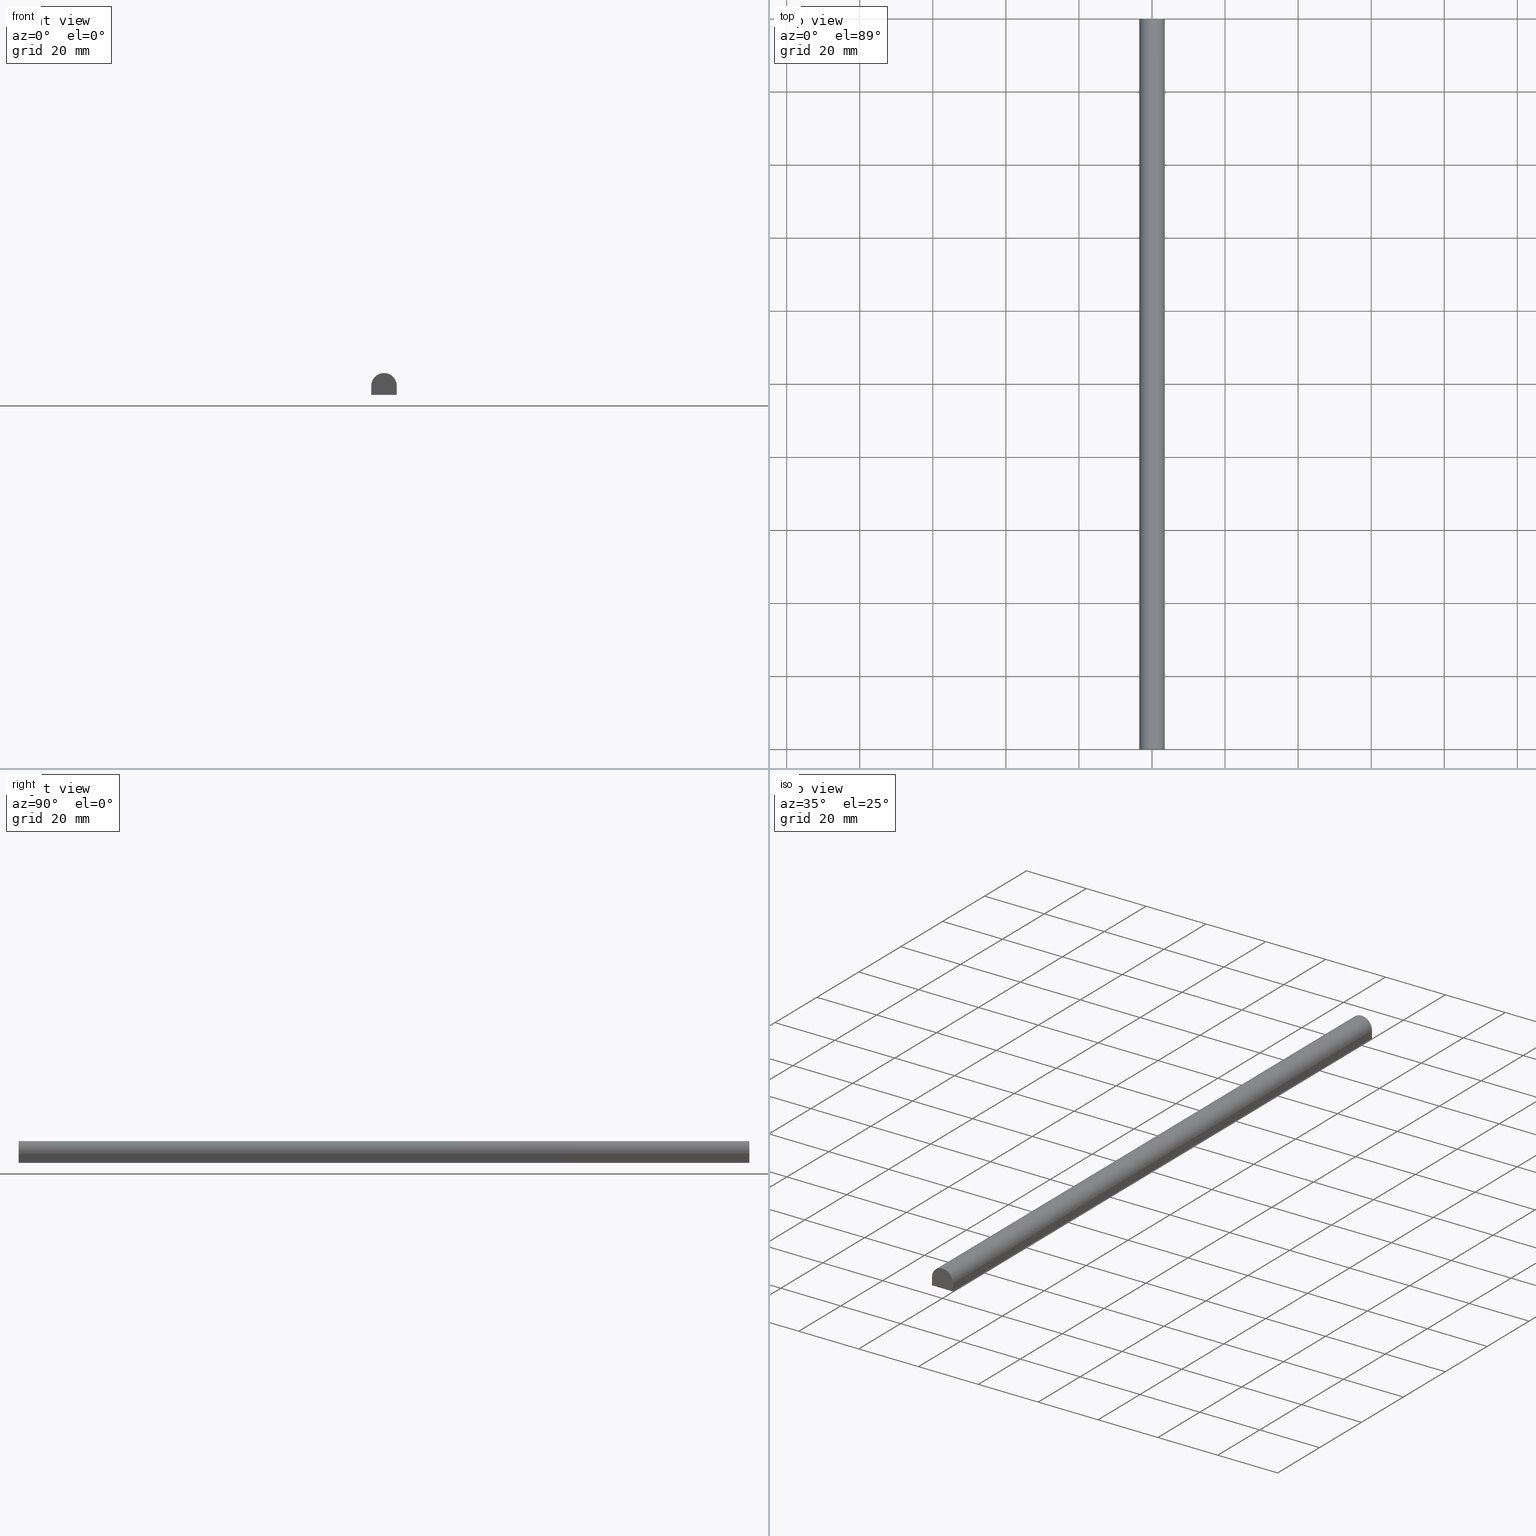
[diagram: canonical four-view strip — front | top / right | iso, engineering-drawing reading convention]
A machine part, canonical four-view strip (front | top / right | iso — engineering-drawing reading convention). The complete STEP part file that produces these views, byte-faithful:
ISO-10303-21;
HEADER;
FILE_DESCRIPTION (( 'STEP AP214' ),
    '1' );
FILE_NAME ('TM_341_1.STEP',
    '2016-05-10T02:18:52',
    ( '' ),
    ( '' ),
    'SwSTEP 2.0',
    'SolidWorks 2015',
    '' );
FILE_SCHEMA (( 'AUTOMOTIVE_DESIGN' ));
ENDSEC;

DATA;
#1 = APPLICATION_PROTOCOL_DEFINITION ( 'draft international standard', 'automotive_design', 1998, #159 ) ;
#2 = CARTESIAN_POINT ( 'NONE',  ( 0.0000000000000000000, 1000.000000000000000, -0.5000000000000000000 ) ) ;
#3 = DIRECTION ( 'NONE',  ( -0.0000000000000000000, -0.0000000000000000000, -1.000000000000000000 ) ) ;
#4 = CARTESIAN_POINT ( 'NONE',  ( 0.0000000000000000000, 0.0000000000000000000, 0.0000000000000000000 ) ) ;
#5 = VERTEX_POINT ( 'NONE', #239 ) ;
#6 = EDGE_CURVE ( 'NONE', #213, #72, #189, .T. ) ;
#7 = CONTEXT_DEPENDENT_SHAPE_REPRESENTATION ( #66, #215 ) ;
#8 = PLANE ( 'NONE',  #204 ) ;
#9 = ADVANCED_FACE ( 'NONE', ( #93 ), #216, .T. ) ;
#10 = LINE ( 'NONE', #111, #36 ) ;
#11 =( GEOMETRIC_REPRESENTATION_CONTEXT ( 3 ) GLOBAL_UNCERTAINTY_ASSIGNED_CONTEXT ( ( #13 ) ) GLOBAL_UNIT_ASSIGNED_CONTEXT ( ( #185, #28, #43 ) ) REPRESENTATION_CONTEXT ( 'NONE', 'WORKASPACE' ) );
#12 = EDGE_LOOP ( 'NONE', ( #228, #134, #156, #167 ) ) ;
#13 = UNCERTAINTY_MEASURE_WITH_UNIT (LENGTH_MEASURE( 1.000000000000000100E-005 ), #185, 'distance_accuracy_value', 'NONE');
#14 = EDGE_CURVE ( 'NONE', #124, #74, #160, .T. ) ;
#15 = DIRECTION ( 'NONE',  ( 1.000000000000000000, -0.0000000000000000000, -0.0000000000000000000 ) ) ;
#16 = FILL_AREA_STYLE_COLOUR ( '', #91 ) ;
#17 = SURFACE_STYLE_USAGE ( .BOTH. , #27 ) ;
#18 = LINE ( 'NONE', #165, #112 ) ;
#19 = DIRECTION ( 'NONE',  ( 0.0000000000000000000, 0.0000000000000000000, 1.000000000000000000 ) ) ;
#20 = FACE_OUTER_BOUND ( 'NONE', #162, .T. ) ;
#21 = VECTOR ( 'NONE', #191, 1000.000000000000000 ) ;
#22 = EDGE_CURVE ( 'NONE', #201, #213, #32, .T. ) ;
#23 = FILL_AREA_STYLE ('',( #16 ) ) ;
#24 =( LENGTH_UNIT ( ) NAMED_UNIT ( * ) SI_UNIT ( .MILLI., .METRE. ) );
#25 = LINE ( 'NONE', #205, #30 ) ;
#26 = CARTESIAN_POINT ( 'NONE',  ( -3.500000000000000000, 0.0000000000000000000, -0.5000000000000000000 ) ) ;
#27 = SURFACE_SIDE_STYLE ('',( #109 ) ) ;
#28 =( NAMED_UNIT ( * ) PLANE_ANGLE_UNIT ( ) SI_UNIT ( $, .RADIAN. ) );
#29 = EDGE_CURVE ( 'NONE', #213, #149, #10, .T. ) ;
#30 = VECTOR ( 'NONE', #152, 1000.000000000000000 ) ;
#31 = AXIS2_PLACEMENT_3D ( 'NONE', #227, #113, #147 ) ;
#32 = CIRCLE ( 'NONE', #71, 3.500000000000000000 ) ;
#33 = DIRECTION ( 'NONE',  ( -0.0000000000000000000, -1.000000000000000000, -0.0000000000000000000 ) ) ;
#34 = DIRECTION ( 'NONE',  ( 0.0000000000000000000, -1.000000000000000000, 0.0000000000000000000 ) ) ;
#35 = CARTESIAN_POINT ( 'NONE',  ( 3.500000000000000000, 0.0000000000000000000, 0.0000000000000000000 ) ) ;
#36 = VECTOR ( 'NONE', #133, 1000.000000000000000 ) ;
#37 = VECTOR ( 'NONE', #54, 1000.000000000000000 ) ;
#38 = CARTESIAN_POINT ( 'NONE',  ( -3.500000000000000000, 200.0000000000000000, -3.000000000000000000 ) ) ;
#39 = LINE ( 'NONE', #221, #82 ) ;
#40 = APPLICATION_CONTEXT ( 'automotive_design' ) ;
#41 = CARTESIAN_POINT ( 'NONE',  ( -3.500000000000000000, 1000.000000000000000, -0.5000000000000000000 ) ) ;
#42 = MECHANICAL_DESIGN_GEOMETRIC_PRESENTATION_REPRESENTATION (  '', ( #238 ), #170 ) ;
#43 =( NAMED_UNIT ( * ) SI_UNIT ( $, .STERADIAN. ) SOLID_ANGLE_UNIT ( ) );
#44 = ORIENTED_EDGE ( 'NONE', *, *, #120, .T. ) ;
#45 = ORIENTED_EDGE ( 'NONE', *, *, #22, .F. ) ;
#46 =( NAMED_UNIT ( * ) PLANE_ANGLE_UNIT ( ) SI_UNIT ( $, .RADIAN. ) );
#47 = CLOSED_SHELL ( 'NONE', ( #9, #85, #224, #103, #90, #118 ) ) ;
#48 =( LENGTH_UNIT ( ) NAMED_UNIT ( * ) SI_UNIT ( .MILLI., .METRE. ) );
#49 = PRODUCT ( 'rubber foam', 'rubber foam', '', ( #187 ) ) ;
#50 = DIRECTION ( 'NONE',  ( 1.000000000000000000, 0.0000000000000000000, 0.0000000000000000000 ) ) ;
#51 = DIRECTION ( 'NONE',  ( 0.0000000000000000000, -1.000000000000000000, 0.0000000000000000000 ) ) ;
#52 = VERTEX_POINT ( 'NONE', #94 ) ;
#53 = CARTESIAN_POINT ( 'NONE',  ( 3.500000000000000000, 1000.000000000000000, -3.000000000000000000 ) ) ;
#54 = DIRECTION ( 'NONE',  ( -0.0000000000000000000, -0.0000000000000000000, 1.000000000000000000 ) ) ;
#55 = EDGE_CURVE ( 'NONE', #5, #201, #89, .T. ) ;
#56 = CARTESIAN_POINT ( 'NONE',  ( 0.0000000000000000000, 200.0000000000000000, 0.0000000000000000000 ) ) ;
#57 = SHAPE_DEFINITION_REPRESENTATION ( #148, #212 ) ;
#58 = DIRECTION ( 'NONE',  ( 0.0000000000000000000, 0.0000000000000000000, -1.000000000000000000 ) ) ;
#59 = DIRECTION ( 'NONE',  ( 0.0000000000000000000, 0.0000000000000000000, 1.000000000000000000 ) ) ;
#60 = PLANE ( 'NONE',  #108 ) ;
#61 = CARTESIAN_POINT ( 'NONE',  ( 0.0000000000000000000, 0.0000000000000000000, -3.000000000000000000 ) ) ;
#62 = ORIENTED_EDGE ( 'NONE', *, *, #120, .F. ) ;
#63 = LINE ( 'NONE', #35, #37 ) ;
#64 = PRESENTATION_STYLE_ASSIGNMENT (( #145 ) ) ;
#65 = SHAPE_REPRESENTATION_RELATIONSHIP ( 'NONE' , 'NONE' ,  #182, #184 ) ;
#66 =( REPRESENTATION_RELATIONSHIP ('NONE','NONE', #212, #182 ) REPRESENTATION_RELATIONSHIP_WITH_TRANSFORMATION ( #139 )SHAPE_REPRESENTATION_RELATIONSHIP( ) );
#67 = ORIENTED_EDGE ( 'NONE', *, *, #99, .T. ) ;
#68 = VECTOR ( 'NONE', #3, 1000.000000000000000 ) ;
#69 = EDGE_LOOP ( 'NONE', ( #176, #62, #101, #115 ) ) ;
#70 = CARTESIAN_POINT ( 'NONE',  ( 3.500000000000000000, 200.0000000000000000, -0.5000000000000000000 ) ) ;
#71 = AXIS2_PLACEMENT_3D ( 'NONE', #83, #177, #19 ) ;
#72 = VERTEX_POINT ( 'NONE', #26 ) ;
#73 = UNCERTAINTY_MEASURE_WITH_UNIT (LENGTH_MEASURE( 1.000000000000000100E-005 ), #48, 'distance_accuracy_value', 'NONE');
#74 = VERTEX_POINT ( 'NONE', #104 ) ;
#75 = LINE ( 'NONE', #53, #218 ) ;
#76 = CYLINDRICAL_SURFACE ( 'NONE', #95, 3.500000000000000000 ) ;
#77 = PRODUCT_DEFINITION_CONTEXT ( 'detailed design', #40, 'design' ) ;
#78 = EDGE_LOOP ( 'NONE', ( #237, #131, #45, #121 ) ) ;
#79 =( NAMED_UNIT ( * ) SI_UNIT ( $, .STERADIAN. ) SOLID_ANGLE_UNIT ( ) );
#80 = PRESENTATION_LAYER_ASSIGNMENT (  '', '', ( #137 ) ) ;
#81 = CARTESIAN_POINT ( 'NONE',  ( 0.0000000000000000000, 0.0000000000000000000, 0.0000000000000000000 ) ) ;
#82 = VECTOR ( 'NONE', #15, 1000.000000000000000 ) ;
#83 = CARTESIAN_POINT ( 'NONE',  ( 0.0000000000000000000, 200.0000000000000000, -0.5000000000000000000 ) ) ;
#84 = DIRECTION ( 'NONE',  ( -0.0000000000000000000, 1.000000000000000000, 0.0000000000000000000 ) ) ;
#85 = ADVANCED_FACE ( 'NONE', ( #20 ), #116, .T. ) ;
#86 = DIRECTION ( 'NONE',  ( 1.000000000000000000, 0.0000000000000000000, 0.0000000000000000000 ) ) ;
#87 = CARTESIAN_POINT ( 'NONE',  ( 3.500000000000000000, 200.0000000000000000, 0.0000000000000000000 ) ) ;
#88 = MANIFOLD_SOLID_BREP ( '���߰�1', #47 ) ;
#89 = LINE ( 'NONE', #87, #219 ) ;
#90 = ADVANCED_FACE ( 'NONE', ( #235 ), #8, .T. ) ;
#91 = COLOUR_RGB ( '',0.7921568627450980000, 0.8196078431372548800, 0.9333333333333333500 ) ;
#92 = SHAPE_DEFINITION_REPRESENTATION ( #135, #182 ) ;
#93 = FACE_OUTER_BOUND ( 'NONE', #12, .T. ) ;
#94 = CARTESIAN_POINT ( 'NONE',  ( 3.500000000000000000, 0.0000000000000000000, -0.5000000000000000000 ) ) ;
#95 = AXIS2_PLACEMENT_3D ( 'NONE', #2, #174, #161 ) ;
#96 = CARTESIAN_POINT ( 'NONE',  ( 0.0000000000000000000, 0.0000000000000000000, 0.0000000000000000000 ) ) ;
#97 = ORIENTED_EDGE ( 'NONE', *, *, #194, .T. ) ;
#98 = DIRECTION ( 'NONE',  ( 1.000000000000000000, 0.0000000000000000000, 0.0000000000000000000 ) ) ;
#99 = EDGE_CURVE ( 'NONE', #74, #52, #63, .T. ) ;
#100 = SURFACE_SIDE_STYLE ('',( #203 ) ) ;
#101 = ORIENTED_EDGE ( 'NONE', *, *, #22, .T. ) ;
#102 = PRESENTATION_STYLE_ASSIGNMENT (( #17 ) ) ;
#103 = ADVANCED_FACE ( 'NONE', ( #192 ), #60, .T. ) ;
#104 = CARTESIAN_POINT ( 'NONE',  ( 3.500000000000000000, 0.0000000000000000000, -3.000000000000000000 ) ) ;
#105 = ORIENTED_EDGE ( 'NONE', *, *, #114, .F. ) ;
#106 = DIRECTION ( 'NONE',  ( -0.0000000000000000000, -0.0000000000000000000, 1.000000000000000000 ) ) ;
#107 = PLANE ( 'NONE',  #119 ) ;
#108 = AXIS2_PLACEMENT_3D ( 'NONE', #41, #166, #175 ) ;
#109 = SURFACE_STYLE_FILL_AREA ( #23 ) ;
#110 = APPLICATION_CONTEXT ( 'automotive_design' ) ;
#111 = CARTESIAN_POINT ( 'NONE',  ( -3.500000000000000000, 200.0000000000000000, 0.0000000000000000000 ) ) ;
#112 = VECTOR ( 'NONE', #34, 1000.000000000000000 ) ;
#113 = DIRECTION ( 'NONE',  ( 0.0000000000000000000, 0.0000000000000000000, 1.000000000000000000 ) ) ;
#114 = EDGE_CURVE ( 'NONE', #72, #124, #129, .T. ) ;
#115 = ORIENTED_EDGE ( 'NONE', *, *, #6, .T. ) ;
#116 = PLANE ( 'NONE',  #206 ) ;
#117 = APPLICATION_PROTOCOL_DEFINITION ( 'draft international standard', 'automotive_design', 1998, #40 ) ;
#118 = ADVANCED_FACE ( 'NONE', ( #138 ), #107, .F. ) ;
#119 = AXIS2_PLACEMENT_3D ( 'NONE', #96, #84, #98 ) ;
#120 = EDGE_CURVE ( 'NONE', #201, #52, #25, .T. ) ;
#121 = ORIENTED_EDGE ( 'NONE', *, *, #55, .F. ) ;
#122 = CIRCLE ( 'NONE', #127, 3.500000000000000000 ) ;
#123 = PRESENTATION_LAYER_ASSIGNMENT (  '', '', ( #238 ) ) ;
#124 = VERTEX_POINT ( 'NONE', #230 ) ;
#125 = DIRECTION ( 'NONE',  ( 1.000000000000000000, 0.0000000000000000000, 0.0000000000000000000 ) ) ;
#126 = VECTOR ( 'NONE', #158, 1000.000000000000000 ) ;
#127 = AXIS2_PLACEMENT_3D ( 'NONE', #168, #33, #59 ) ;
#128 = CARTESIAN_POINT ( 'NONE',  ( -3.500000000000000000, 1000.000000000000000, -3.000000000000000000 ) ) ;
#129 = LINE ( 'NONE', #233, #68 ) ;
#130 =( NAMED_UNIT ( * ) SI_UNIT ( $, .STERADIAN. ) SOLID_ANGLE_UNIT ( ) );
#131 = ORIENTED_EDGE ( 'NONE', *, *, #29, .F. ) ;
#132 = ORIENTED_EDGE ( 'NONE', *, *, #240, .T. ) ;
#133 = DIRECTION ( 'NONE',  ( -0.0000000000000000000, -0.0000000000000000000, -1.000000000000000000 ) ) ;
#134 = ORIENTED_EDGE ( 'NONE', *, *, #194, .F. ) ;
#135 = PRODUCT_DEFINITION_SHAPE ( 'NONE', 'NONE',  #141 ) ;
#136 = FILL_AREA_STYLE_COLOUR ( '', #232 ) ;
#137 = STYLED_ITEM ( 'NONE', ( #102 ), #184 ) ;
#138 = FACE_OUTER_BOUND ( 'NONE', #209, .T. ) ;
#139 = ITEM_DEFINED_TRANSFORMATION ( 'NONE', 'NONE', #178,  #31 ) ;
#140 = EDGE_CURVE ( 'NONE', #5, #74, #75, .T. ) ;
#141 = PRODUCT_DEFINITION ( 'UNKNOWN', '', #210, #77 ) ;
#142 = APPLICATION_PROTOCOL_DEFINITION ( 'draft international standard', 'automotive_design', 1998, #223 ) ;
#143 = ORIENTED_EDGE ( 'NONE', *, *, #14, .T. ) ;
#144 = DIRECTION ( 'NONE',  ( 1.000000000000000000, 0.0000000000000000000, 0.0000000000000000000 ) ) ;
#145 = SURFACE_STYLE_USAGE ( .BOTH. , #100 ) ;
#146 = CARTESIAN_POINT ( 'NONE',  ( 3.500000000000000000, 1000.000000000000000, -3.000000000000000000 ) ) ;
#147 = DIRECTION ( 'NONE',  ( 1.000000000000000000, 0.0000000000000000000, 0.0000000000000000000 ) ) ;
#148 = PRODUCT_DEFINITION_SHAPE ( 'NONE', 'NONE',  #163 ) ;
#149 = VERTEX_POINT ( 'NONE', #38 ) ;
#150 = ORIENTED_EDGE ( 'NONE', *, *, #6, .F. ) ;
#151 = DIRECTION ( 'NONE',  ( -0.0000000000000000000, 1.000000000000000000, 0.0000000000000000000 ) ) ;
#152 = DIRECTION ( 'NONE',  ( 0.0000000000000000000, -1.000000000000000000, 0.0000000000000000000 ) ) ;
#153 = UNCERTAINTY_MEASURE_WITH_UNIT (LENGTH_MEASURE( 1.000000000000000100E-005 ), #24, 'distance_accuracy_value', 'NONE');
#154 = DIRECTION ( 'NONE',  ( 0.0000000000000000000, 0.0000000000000000000, 1.000000000000000000 ) ) ;
#155 = PRODUCT ( 'TM_341_1', 'TM_341_1', '', ( #199 ) ) ;
#156 = ORIENTED_EDGE ( 'NONE', *, *, #234, .T. ) ;
#157 = UNCERTAINTY_MEASURE_WITH_UNIT (LENGTH_MEASURE( 1.000000000000000100E-005 ), #214, 'distance_accuracy_value', 'NONE');
#158 = DIRECTION ( 'NONE',  ( 0.0000000000000000000, -1.000000000000000000, 0.0000000000000000000 ) ) ;
#159 = APPLICATION_CONTEXT ( 'automotive_design' ) ;
#160 = LINE ( 'NONE', #61, #21 ) ;
#161 = DIRECTION ( 'NONE',  ( 0.0000000000000000000, 0.0000000000000000000, -1.000000000000000000 ) ) ;
#162 = EDGE_LOOP ( 'NONE', ( #197, #188, #196, #44 ) ) ;
#163 = PRODUCT_DEFINITION ( 'UNKNOWN', '', #173, #180 ) ;
#164 = ORIENTED_EDGE ( 'NONE', *, *, #29, .T. ) ;
#165 = CARTESIAN_POINT ( 'NONE',  ( -3.500000000000000000, 1000.000000000000000, -3.000000000000000000 ) ) ;
#166 = DIRECTION ( 'NONE',  ( -1.000000000000000000, 0.0000000000000000000, 0.0000000000000000000 ) ) ;
#167 = ORIENTED_EDGE ( 'NONE', *, *, #140, .T. ) ;
#168 = CARTESIAN_POINT ( 'NONE',  ( 0.0000000000000000000, 0.0000000000000000000, -0.5000000000000000000 ) ) ;
#169 = FILL_AREA_STYLE ('',( #136 ) ) ;
#170 =( GEOMETRIC_REPRESENTATION_CONTEXT ( 3 ) GLOBAL_UNCERTAINTY_ASSIGNED_CONTEXT ( ( #73 ) ) GLOBAL_UNIT_ASSIGNED_CONTEXT ( ( #48, #46, #79 ) ) REPRESENTATION_CONTEXT ( 'NONE', 'WORKASPACE' ) );
#171 = DIRECTION ( 'NONE',  ( 0.0000000000000000000, 0.0000000000000000000, -1.000000000000000000 ) ) ;
#172 = CARTESIAN_POINT ( 'NONE',  ( -3.500000000000000000, 1000.000000000000000, -0.5000000000000000000 ) ) ;
#173 = PRODUCT_DEFINITION_FORMATION_WITH_SPECIFIED_SOURCE ( 'ANY', '', #155, .NOT_KNOWN. ) ;
#174 = DIRECTION ( 'NONE',  ( 0.0000000000000000000, -1.000000000000000000, 0.0000000000000000000 ) ) ;
#175 = DIRECTION ( 'NONE',  ( 0.0000000000000000000, 0.0000000000000000000, 1.000000000000000000 ) ) ;
#176 = ORIENTED_EDGE ( 'NONE', *, *, #240, .F. ) ;
#177 = DIRECTION ( 'NONE',  ( -0.0000000000000000000, -1.000000000000000000, -0.0000000000000000000 ) ) ;
#178 = AXIS2_PLACEMENT_3D ( 'NONE', #4, #179, #236 ) ;
#179 = DIRECTION ( 'NONE',  ( 0.0000000000000000000, 0.0000000000000000000, 1.000000000000000000 ) ) ;
#180 = PRODUCT_DEFINITION_CONTEXT ( 'detailed design', #159, 'design' ) ;
#181 = AXIS2_PLACEMENT_3D ( 'NONE', #217, #200, #144 ) ;
#182 = SHAPE_REPRESENTATION ( 'rubber foam', ( #31 ), #11 ) ;
#183 =( NAMED_UNIT ( * ) PLANE_ANGLE_UNIT ( ) SI_UNIT ( $, .RADIAN. ) );
#184 = ADVANCED_BREP_SHAPE_REPRESENTATION ( '', ( #88, #31 ), #11 ) ;
#185 =( LENGTH_UNIT ( ) NAMED_UNIT ( * ) SI_UNIT ( .MILLI., .METRE. ) );
#186 =( GEOMETRIC_REPRESENTATION_CONTEXT ( 3 ) GLOBAL_UNCERTAINTY_ASSIGNED_CONTEXT ( ( #153 ) ) GLOBAL_UNIT_ASSIGNED_CONTEXT ( ( #24, #183, #130 ) ) REPRESENTATION_CONTEXT ( 'NONE', 'WORKASPACE' ) );
#187 = PRODUCT_CONTEXT ( 'NONE', #223, 'mechanical' ) ;
#188 = ORIENTED_EDGE ( 'NONE', *, *, #140, .F. ) ;
#189 = LINE ( 'NONE', #172, #126 ) ;
#190 = PRODUCT_RELATED_PRODUCT_CATEGORY ( 'part', '', ( #155 ) ) ;
#191 = DIRECTION ( 'NONE',  ( 1.000000000000000000, -0.0000000000000000000, -0.0000000000000000000 ) ) ;
#192 = FACE_OUTER_BOUND ( 'NONE', #208, .T. ) ;
#193 =( NAMED_UNIT ( * ) PLANE_ANGLE_UNIT ( ) SI_UNIT ( $, .RADIAN. ) );
#194 = EDGE_CURVE ( 'NONE', #149, #124, #18, .T. ) ;
#195 =( GEOMETRIC_REPRESENTATION_CONTEXT ( 3 ) GLOBAL_UNCERTAINTY_ASSIGNED_CONTEXT ( ( #157 ) ) GLOBAL_UNIT_ASSIGNED_CONTEXT ( ( #214, #193, #220 ) ) REPRESENTATION_CONTEXT ( 'NONE', 'WORKASPACE' ) );
#196 = ORIENTED_EDGE ( 'NONE', *, *, #55, .T. ) ;
#197 = ORIENTED_EDGE ( 'NONE', *, *, #99, .F. ) ;
#198 = FACE_OUTER_BOUND ( 'NONE', #69, .T. ) ;
#199 = PRODUCT_CONTEXT ( 'NONE', #110, 'mechanical' ) ;
#200 = DIRECTION ( 'NONE',  ( 0.0000000000000000000, 0.0000000000000000000, 1.000000000000000000 ) ) ;
#201 = VERTEX_POINT ( 'NONE', #70 ) ;
#202 = CARTESIAN_POINT ( 'NONE',  ( -3.500000000000000000, 200.0000000000000000, -0.5000000000000000000 ) ) ;
#203 = SURFACE_STYLE_FILL_AREA ( #169 ) ;
#204 = AXIS2_PLACEMENT_3D ( 'NONE', #56, #151, #50 ) ;
#205 = CARTESIAN_POINT ( 'NONE',  ( 3.500000000000000000, 1000.000000000000000, -0.5000000000000000000 ) ) ;
#206 = AXIS2_PLACEMENT_3D ( 'NONE', #146, #86, #171 ) ;
#207 = ORIENTED_EDGE ( 'NONE', *, *, #114, .T. ) ;
#208 = EDGE_LOOP ( 'NONE', ( #105, #150, #164, #97 ) ) ;
#209 = EDGE_LOOP ( 'NONE', ( #143, #67, #132, #207 ) ) ;
#210 = PRODUCT_DEFINITION_FORMATION_WITH_SPECIFIED_SOURCE ( 'ANY', '', #49, .NOT_KNOWN. ) ;
#211 = AXIS2_PLACEMENT_3D ( 'NONE', #128, #58, #231 ) ;
#212 = SHAPE_REPRESENTATION ( 'TM_341_1', ( #222, #178 ), #186 ) ;
#213 = VERTEX_POINT ( 'NONE', #202 ) ;
#214 =( LENGTH_UNIT ( ) NAMED_UNIT ( * ) SI_UNIT ( .MILLI., .METRE. ) );
#215 = PRODUCT_DEFINITION_SHAPE ( 'NONE', 'NONE',  #241 ) ;
#216 = PLANE ( 'NONE',  #211 ) ;
#217 = CARTESIAN_POINT ( 'NONE',  ( 0.0000000000000000000, 0.0000000000000000000, 0.0000000000000000000 ) ) ;
#218 = VECTOR ( 'NONE', #51, 1000.000000000000000 ) ;
#219 = VECTOR ( 'NONE', #106, 1000.000000000000000 ) ;
#220 =( NAMED_UNIT ( * ) SI_UNIT ( $, .STERADIAN. ) SOLID_ANGLE_UNIT ( ) );
#221 = CARTESIAN_POINT ( 'NONE',  ( 0.0000000000000000000, 200.0000000000000000, -3.000000000000000000 ) ) ;
#222 = AXIS2_PLACEMENT_3D ( 'NONE', #81, #154, #125 ) ;
#223 = APPLICATION_CONTEXT ( 'automotive_design' ) ;
#224 = ADVANCED_FACE ( 'NONE', ( #198 ), #76, .T. ) ;
#225 = APPLICATION_PROTOCOL_DEFINITION ( 'draft international standard', 'automotive_design', 1998, #110 ) ;
#226 = PRODUCT_RELATED_PRODUCT_CATEGORY ( 'part', '', ( #49 ) ) ;
#227 = CARTESIAN_POINT ( 'NONE',  ( 0.0000000000000000000, 0.0000000000000000000, 0.0000000000000000000 ) ) ;
#228 = ORIENTED_EDGE ( 'NONE', *, *, #14, .F. ) ;
#229 = MECHANICAL_DESIGN_GEOMETRIC_PRESENTATION_REPRESENTATION (  '', ( #137 ), #195 ) ;
#230 = CARTESIAN_POINT ( 'NONE',  ( -3.500000000000000000, 0.0000000000000000000, -3.000000000000000000 ) ) ;
#231 = DIRECTION ( 'NONE',  ( -1.000000000000000000, 0.0000000000000000000, 0.0000000000000000000 ) ) ;
#232 = COLOUR_RGB ( '',0.7921568627450980000, 0.8196078431372548800, 0.9333333333333333500 ) ;
#233 = CARTESIAN_POINT ( 'NONE',  ( -3.500000000000000000, 0.0000000000000000000, 0.0000000000000000000 ) ) ;
#234 = EDGE_CURVE ( 'NONE', #149, #5, #39, .T. ) ;
#235 = FACE_OUTER_BOUND ( 'NONE', #78, .T. ) ;
#236 = DIRECTION ( 'NONE',  ( 1.000000000000000000, 0.0000000000000000000, 0.0000000000000000000 ) ) ;
#237 = ORIENTED_EDGE ( 'NONE', *, *, #234, .F. ) ;
#238 = STYLED_ITEM ( 'NONE', ( #64 ), #88 ) ;
#239 = CARTESIAN_POINT ( 'NONE',  ( 3.500000000000000000, 200.0000000000000000, -3.000000000000000000 ) ) ;
#240 = EDGE_CURVE ( 'NONE', #52, #72, #122, .T. ) ;
#241 = NEXT_ASSEMBLY_USAGE_OCCURRENCE ( 'NAUO1', ' ', ' ', #163, #141, $ ) ;
ENDSEC;
END-ISO-10303-21;
